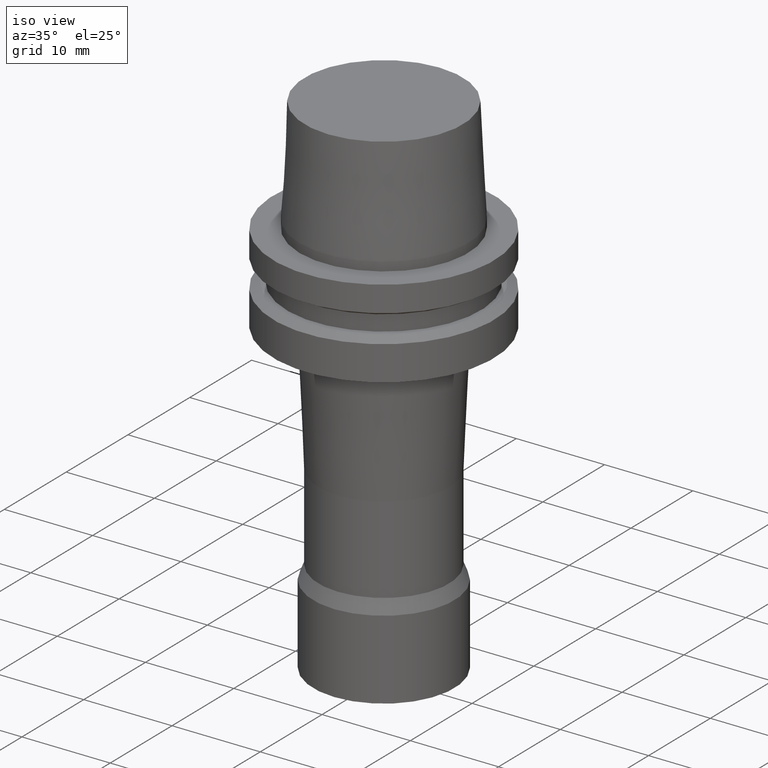
[diagram: clean part render]
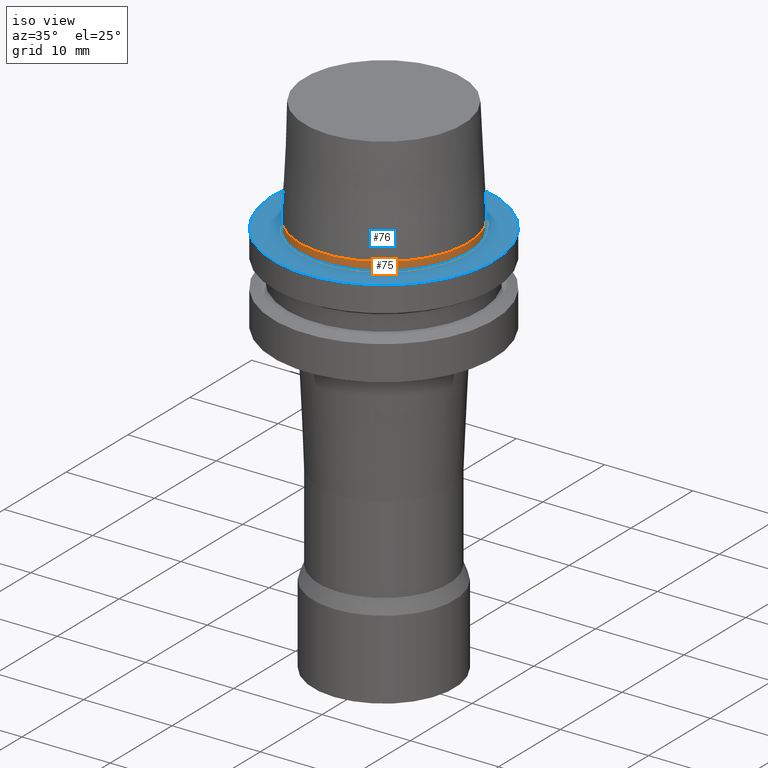
[diagram: same view with the hole feature highlighted: cylindrical wall and planar end face, labeled with their STEP entity ids]
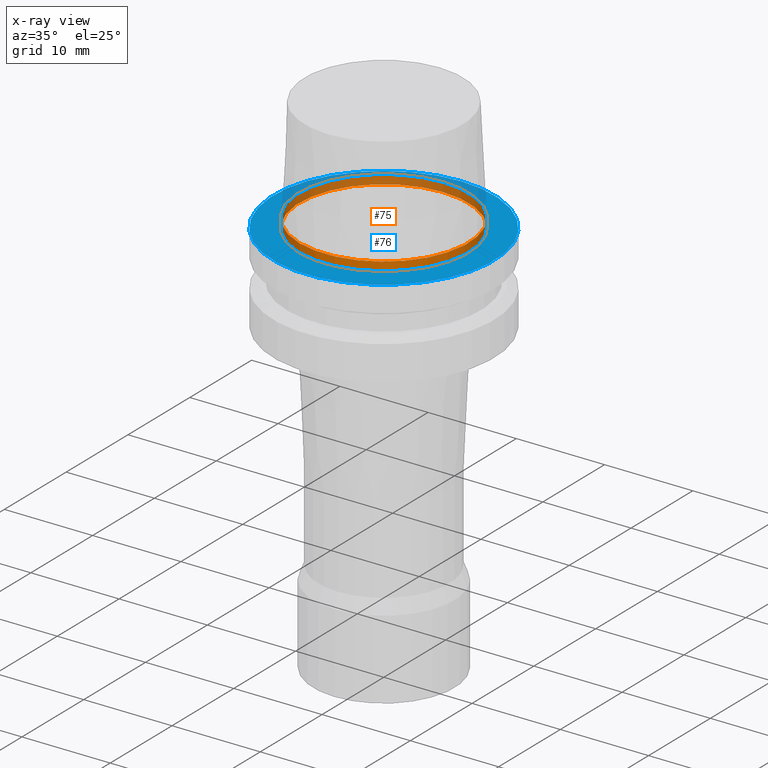
[diagram: x-ray of the same camera — body ghosted, the hole faces saturated]
A machine part, iso view. The highlighted faces form one hole feature of diameter 19.15 mm: the cylindrical wall (entity #75, orange) and its adjacent planar end face (entity #76, blue) — they share a circular edge in the B-rep.
The next image is the same camera in x-ray (body ghosted, the hole faces saturated) — the bore reads through the body.
Wall:
#75=ADVANCED_FACE('',(#94,#95),#96,.T.);
#94=FACE_BOUND('',#146,.T.);
#95=FACE_BOUND('',#147,.T.);
#96=CYLINDRICAL_SURFACE('',#148,9.575);
#146=EDGE_LOOP('',(#198));
#147=EDGE_LOOP('',(#199));
#148=AXIS2_PLACEMENT_3D('',#200,#201,#202);
#198=ORIENTED_EDGE('',*,*,#286,.F.);
#199=ORIENTED_EDGE('',*,*,#287,.T.);
#200=CARTESIAN_POINT('',(-3.06161699786838E-017,-6.12323399573676E-017,0.5));
#201=DIRECTION('',(-6.12323399573677E-017,-1.22464679914735E-016,1.0));
#202=DIRECTION('',(-1.23259516440783E-032,1.0,1.22464679914735E-016));
#286=EDGE_CURVE('',#303,#303,#304,.T.);
#287=EDGE_CURVE('',#305,#305,#306,.T.);
#303=VERTEX_POINT('',#337);
#304=CIRCLE('',#338,9.575);
#305=VERTEX_POINT('',#339);
#306=CIRCLE('',#340,9.575);
#337=CARTESIAN_POINT('',(-1.1802098699205E-031,9.575,1.17259931018359E-015));
#338=AXIS2_PLACEMENT_3D('',#371,#372,#373);
#339=CARTESIAN_POINT('',(-6.12323399573678E-017,9.575,1.0));
#340=AXIS2_PLACEMENT_3D('',#374,#375,#376);
#371=CARTESIAN_POINT('',(0.0,0.0,0.0));
#372=DIRECTION('',(6.12323399573677E-017,1.22464679914735E-016,-1.0));
#373=DIRECTION('',(-1.23259516440783E-032,1.0,1.22464679914735E-016));
#374=CARTESIAN_POINT('',(-6.12323399573677E-017,-1.22464679914735E-016,1.0));
#375=DIRECTION('',(6.12323399573677E-017,1.22464679914735E-016,-1.0));
#376=DIRECTION('',(-1.23259516440783E-032,1.0,1.22464679914735E-016));
End face:
#76=ADVANCED_FACE('',(#97,#98),#99,.T.);
#97=FACE_OUTER_BOUND('',#149,.T.);
#98=FACE_BOUND('',#150,.T.);
#99=PLANE('',#151);
#149=EDGE_LOOP('',(#203));
#150=EDGE_LOOP('',(#204));
#151=AXIS2_PLACEMENT_3D('',#205,#206,#207);
#203=ORIENTED_EDGE('',*,*,#288,.F.);
#204=ORIENTED_EDGE('',*,*,#286,.T.);
#205=CARTESIAN_POINT('',(-1.36047691271514E-031,11.0375,1.35170390455889E-015));
#206=DIRECTION('',(-6.12323399573677E-017,-1.22464679914735E-016,1.0));
#207=DIRECTION('',(1.23259516440783E-032,-1.0,-1.22464679914735E-016));
#286=EDGE_CURVE('',#303,#303,#304,.T.);
#288=EDGE_CURVE('',#307,#307,#308,.T.);
#303=VERTEX_POINT('',#337);
#304=CIRCLE('',#338,9.575);
#307=VERTEX_POINT('',#341);
#308=CIRCLE('',#342,12.5);
#337=CARTESIAN_POINT('',(-1.1802098699205E-031,9.575,1.17259931018359E-015));
#338=AXIS2_PLACEMENT_3D('',#371,#372,#373);
#341=CARTESIAN_POINT('',(-1.54074395550979E-031,12.5,1.53080849893419E-015));
#342=AXIS2_PLACEMENT_3D('',#377,#378,#379);
#371=CARTESIAN_POINT('',(0.0,0.0,0.0));
#372=DIRECTION('',(6.12323399573677E-017,1.22464679914735E-016,-1.0));
#373=DIRECTION('',(-1.23259516440783E-032,1.0,1.22464679914735E-016));
#377=CARTESIAN_POINT('',(0.0,0.0,0.0));
#378=DIRECTION('',(6.12323399573677E-017,1.22464679914735E-016,-1.0));
#379=DIRECTION('',(-1.23259516440783E-032,1.0,1.22464679914735E-016));